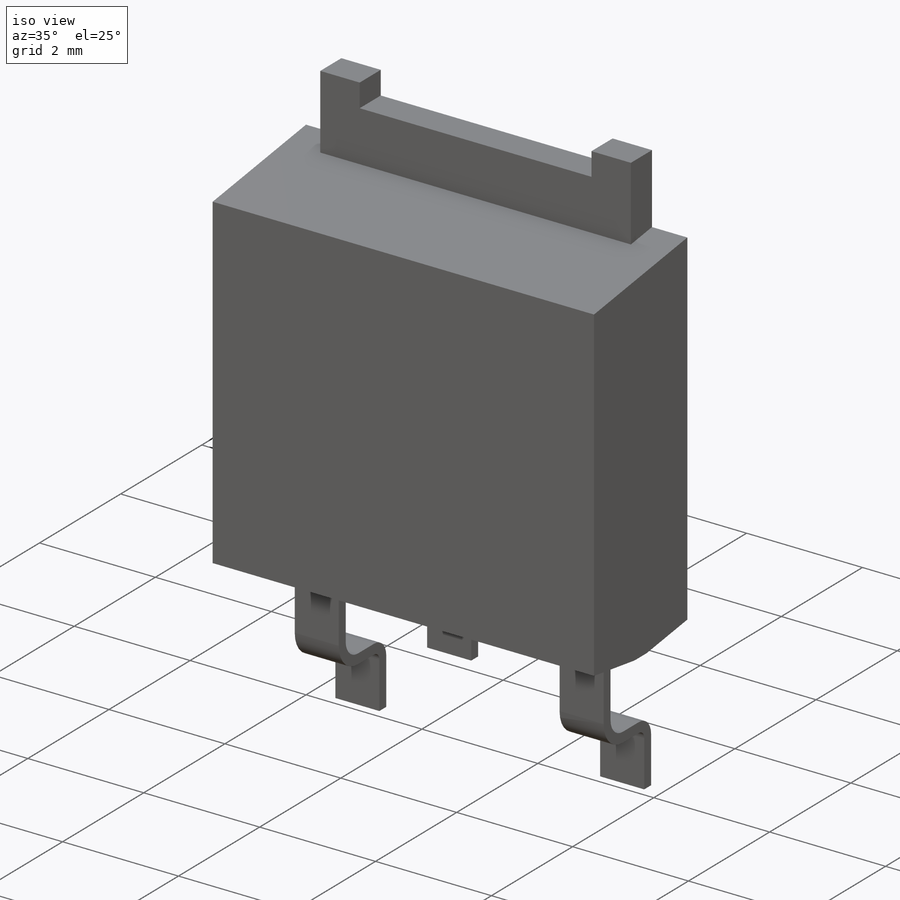
[diagram: iso view]
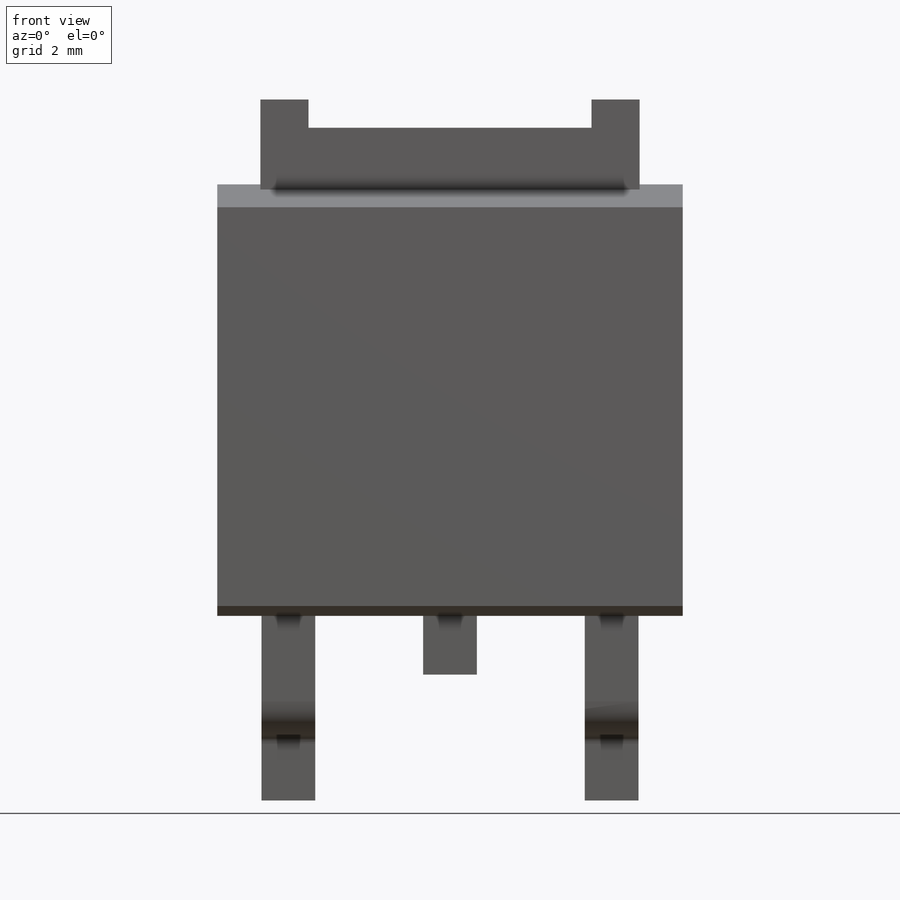
[diagram: front view]
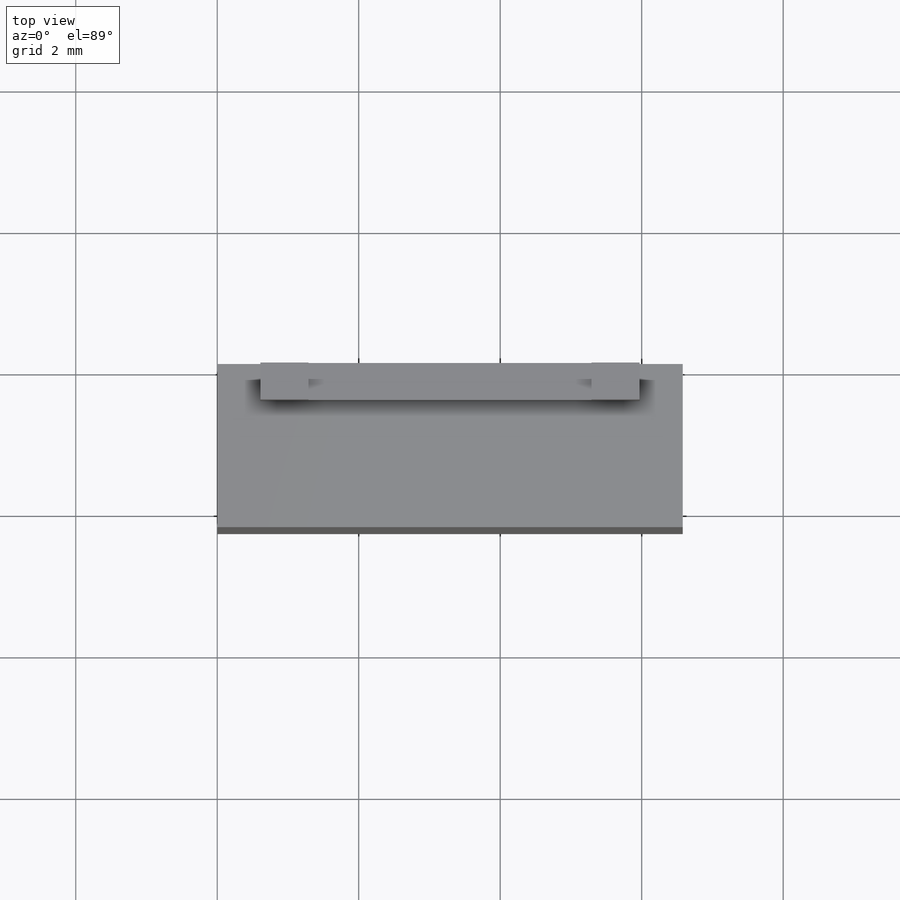
[diagram: top view]
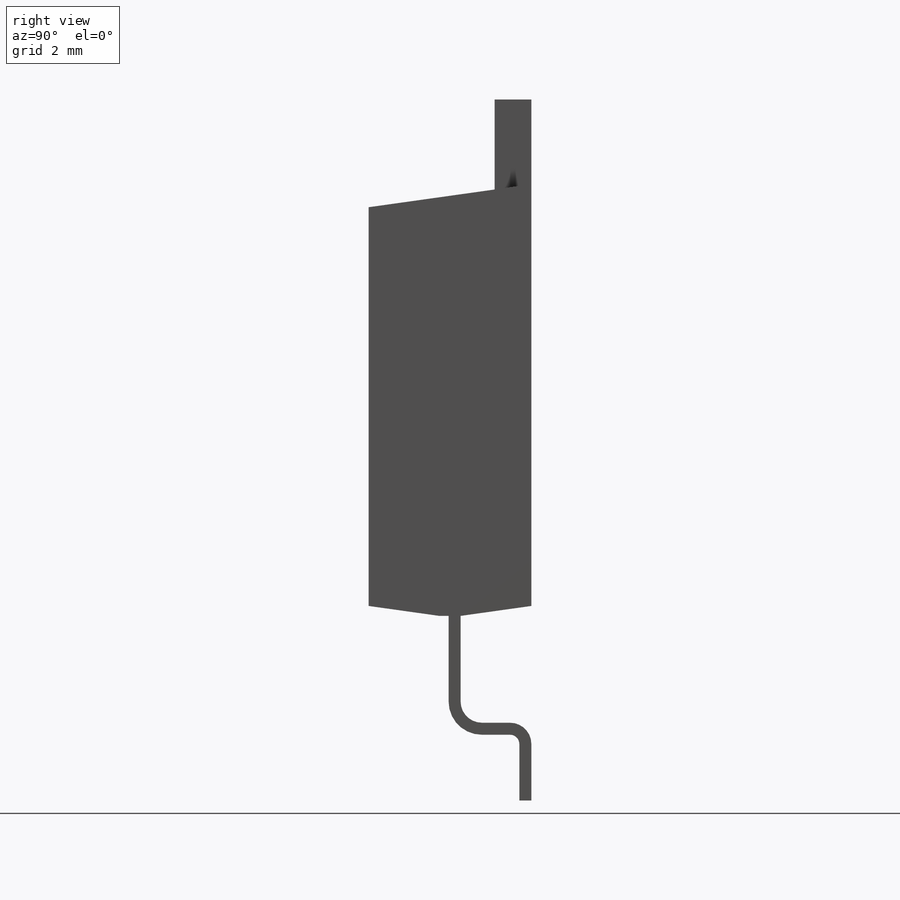
[diagram: right view]
SOLIDWORKS PART (.sldprt)
format: sldprt  version: not decoded by parser v0  size: 221,696 bytes
history: native  units: mm
features: sketch x4, plane x4, extrude x3, material x1, chamfer x1, mirror x1 (+13 scaffold rows collapsed)
feature tree (27):
  scaffold x13  (default folders/planes/origin — collapsed)
  material  "Material <not specified>"
  sketch  "Sketch1"  dims[D1=6.1mm D2=6.58mm]
  extrude  "Boss-Extrude1"  Depth=2.3mm
  plane  "Plane1"  Offset=1.01mm
  plane  "Plane2"  Offset=0.17mm
  chamfer  "Chamfer1"  Distance=1mm Angle=8deg
  sketch  "Sketch2"  dims[c1.D1=5.36mm c1.D2=1.2mm c2.D1=5.36mm c2.D3=0.4mm c2.D4=4.0mm]
  extrude  "Boss-Extrude2"  Depth=0.52mm
  plane  "Plane3"  Offset=3.29mm
  plane  "Plane4"  Offset=2.285mm
  sketch  "Sketch3"  dims[c1.D3=0.3mm c1.D1=1.1mm c1.D2=9.91mm c2.D1=0.76mm c2.D5=0.17mm c2.D6=10.0mm c2.D7=5.0mm]
  mirror  "Mirror1"
  sketch  "Sketch4"  dims[D1=0.83mm]
  extrude  "Extrude-Thin2"  Depth=0.76mm
decode coverage: 8 of 9 modeling features carry decoded parameters
note: suppression state not decoded; provenance and decode notes live in map.json
